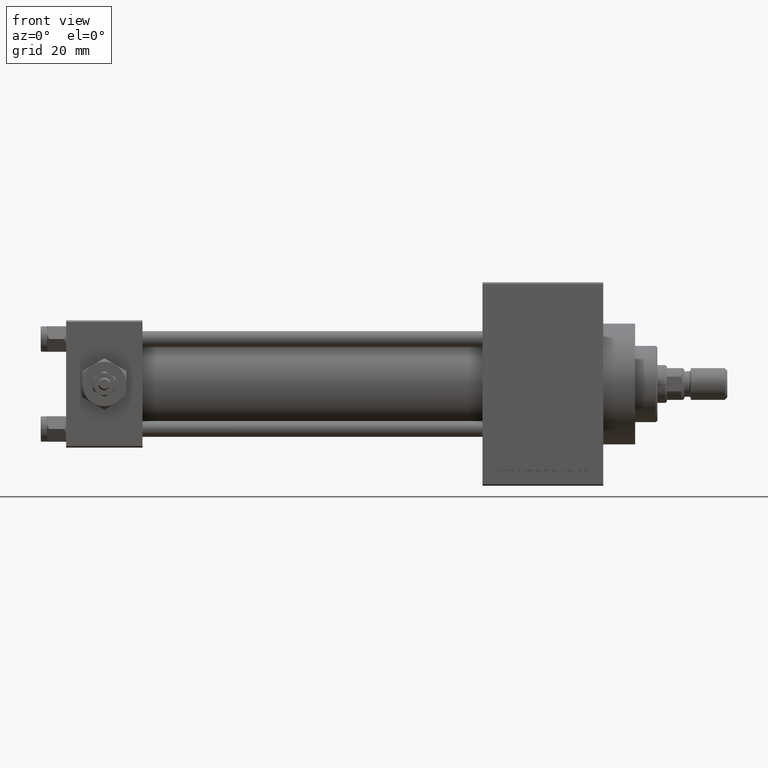
[diagram: clean part render]
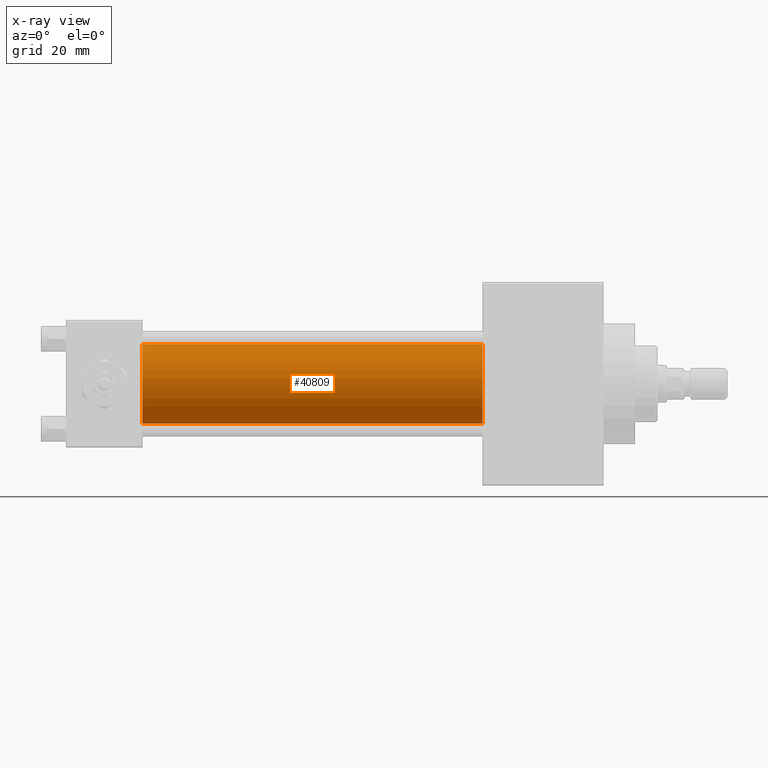
[diagram: x-ray — body ghosted, one internal face saturated and labeled with its STEP entity id]
A machine part, front view, then the same camera in x-ray: the body is ghosted and one INTERNAL B-rep face — a face not visible from any outside direction — is saturated and labeled: STEP entity #40809.
In plain terms, the highlighted cylindrical surface (partial cylindrical patch) has radius 12.5 mm, axis along (-1, -0, -0).
Its self-contained STEP definition (entity closure, byte-faithful):
#1284 = CARTESIAN_POINT ( 'NONE',  ( 131.0000000000000000, -2.602085213965210642E-15, 0.000000000000000000 ) ) ;
#1867 = LINE ( 'NONE', #21123, #27567 ) ;
#3027 = VECTOR ( 'NONE', #8089, 1000.000000000000000 ) ;
#7031 = DIRECTION ( 'NONE',  ( -1.000000000000000000, -0.000000000000000000, -0.000000000000000000 ) ) ;
#8089 = DIRECTION ( 'NONE',  ( -1.000000000000000000, -0.000000000000000000, -0.000000000000000000 ) ) ;
#8466 = ORIENTED_EDGE ( 'NONE', *, *, #24235, .T. ) ;
#10310 = AXIS2_PLACEMENT_3D ( 'NONE', #1284, #47028, #24048 ) ;
#12515 = EDGE_CURVE ( 'NONE', #23808, #42941, #1867, .T. ) ;
#12806 = EDGE_LOOP ( 'NONE', ( #8466, #27850, #23383, #37273 ) ) ;
#14116 = DIRECTION ( 'NONE',  ( 0.000000000000000000, 0.000000000000000000, -1.000000000000000000 ) ) ;
#17025 = EDGE_CURVE ( 'NONE', #28073, #41479, #48847, .T. ) ;
#17126 = DIRECTION ( 'NONE',  ( -1.000000000000000000, -0.000000000000000000, -0.000000000000000000 ) ) ;
#19078 = CIRCLE ( 'NONE', #10310, 12.49999999999999645 ) ;
#21123 = CARTESIAN_POINT ( 'NONE',  ( 131.0000000000000000, -2.602085213965210642E-15, 12.49999999999999645 ) ) ;
#21609 = CARTESIAN_POINT ( 'NONE',  ( 24.00000000000000000, -2.602085213965210642E-15, 0.000000000000000000 ) ) ;
#23383 = ORIENTED_EDGE ( 'NONE', *, *, #29059, .F. ) ;
#23808 = VERTEX_POINT ( 'NONE', #31103 ) ;
#24048 = DIRECTION ( 'NONE',  ( 0.000000000000000000, 0.000000000000000000, -1.000000000000000000 ) ) ;
#24235 = EDGE_CURVE ( 'NONE', #23808, #28073, #19078, .T. ) ;
#25745 = CARTESIAN_POINT ( 'NONE',  ( 24.00000000000000000, -2.602085213965210642E-15, 12.49999999999999645 ) ) ;
#26047 = DIRECTION ( 'NONE',  ( 0.000000000000000000, 0.000000000000000000, 1.000000000000000000 ) ) ;
#27567 = VECTOR ( 'NONE', #17126, 1000.000000000000000 ) ;
#27850 = ORIENTED_EDGE ( 'NONE', *, *, #17025, .T. ) ;
#28073 = VERTEX_POINT ( 'NONE', #41283 ) ;
#29059 = EDGE_CURVE ( 'NONE', #42941, #41479, #42409, .T. ) ;
#29527 = CYLINDRICAL_SURFACE ( 'NONE', #36120, 12.49999999999999645 ) ;
#30499 = FACE_OUTER_BOUND ( 'NONE', #12806, .T. ) ;
#31103 = CARTESIAN_POINT ( 'NONE',  ( 131.0000000000000000, -2.602085213965210642E-15, 12.49999999999999645 ) ) ;
#36120 = AXIS2_PLACEMENT_3D ( 'NONE', #44780, #7031, #26047 ) ;
#37273 = ORIENTED_EDGE ( 'NONE', *, *, #12515, .F. ) ;
#38573 = CARTESIAN_POINT ( 'NONE',  ( 131.0000000000000000, -1.071276715031019515E-15, -12.49999999999999645 ) ) ;
#40809 = ADVANCED_FACE ( 'NONE', ( #30499 ), #29527, .F. ) ;
#41283 = CARTESIAN_POINT ( 'NONE',  ( 131.0000000000000000, -1.071276715031019515E-15, -12.49999999999999645 ) ) ;
#41479 = VERTEX_POINT ( 'NONE', #47035 ) ;
#42409 = CIRCLE ( 'NONE', #43187, 12.49999999999999645 ) ;
#42941 = VERTEX_POINT ( 'NONE', #25745 ) ;
#43187 = AXIS2_PLACEMENT_3D ( 'NONE', #21609, #48590, #14116 ) ;
#44780 = CARTESIAN_POINT ( 'NONE',  ( 131.0000000000000000, -2.602085213965210642E-15, 0.000000000000000000 ) ) ;
#47028 = DIRECTION ( 'NONE',  ( 1.000000000000000000, 0.000000000000000000, 0.000000000000000000 ) ) ;
#47035 = CARTESIAN_POINT ( 'NONE',  ( 24.00000000000000000, -1.071276715031019515E-15, -12.49999999999999645 ) ) ;
#48590 = DIRECTION ( 'NONE',  ( 1.000000000000000000, 0.000000000000000000, 0.000000000000000000 ) ) ;
#48847 = LINE ( 'NONE', #38573, #3027 ) ;